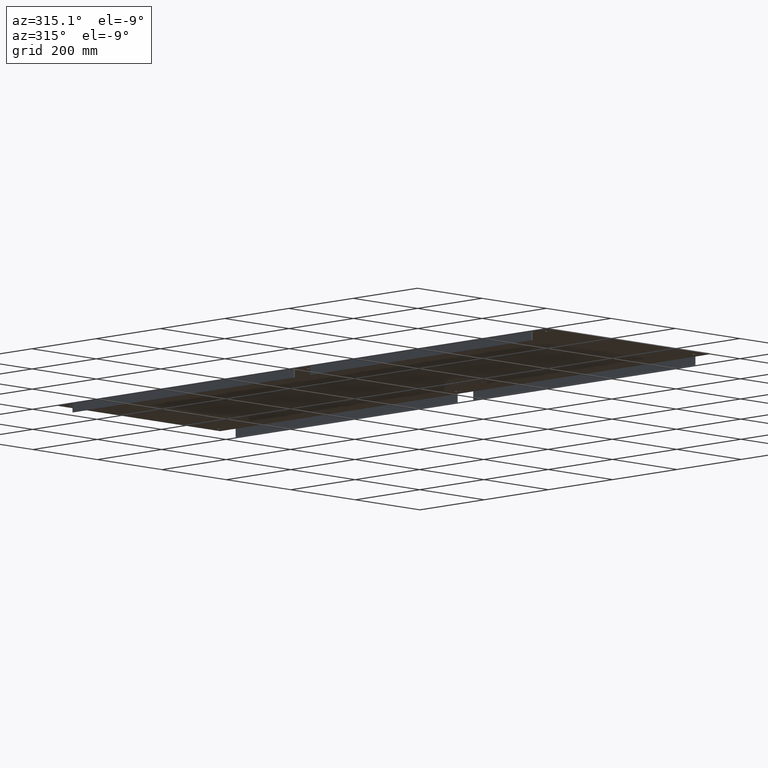
[diagram: clean part render]
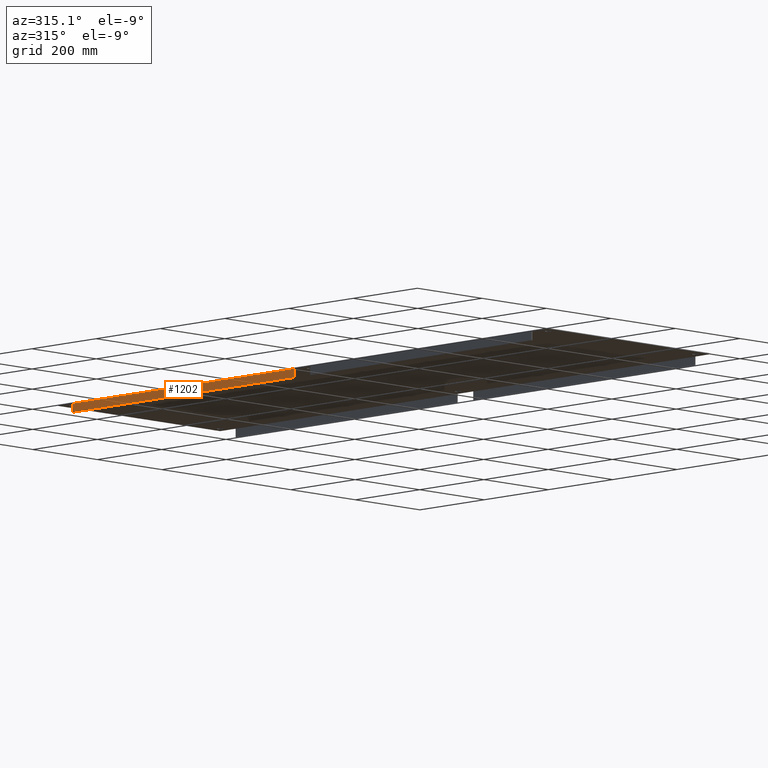
[diagram: same view with one face highlighted and labeled with its STEP entity id]
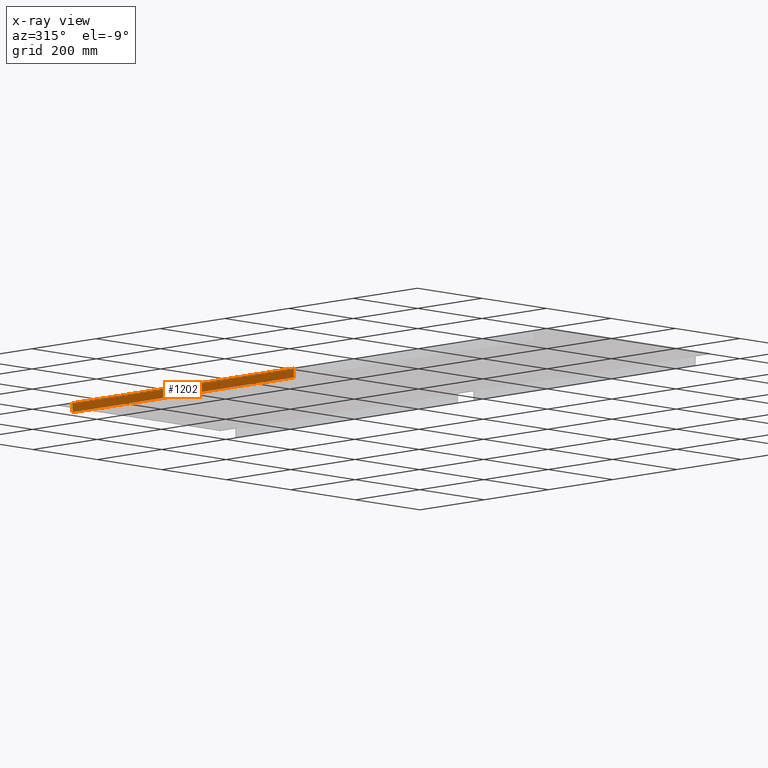
[diagram: x-ray of the same camera — body ghosted, the highlighted face saturated]
A machine part, auxiliary view. The second image highlights one B-rep face of the part: STEP entity #1202.
The next image is the same camera in x-ray: the body ghosted, the highlighted face saturated — about 0% of this face is hidden behind the body in this view.
In plain terms, the highlighted planar face has unit normal (-1, 0, 0).
Its self-contained STEP definition (entity closure, byte-faithful):
#266=CARTESIAN_POINT('',(-1.942647E-019,31.000000000000007,-0.015));
#267=VERTEX_POINT('',#266);
#275=CARTESIAN_POINT('',(0.0,31.000000000000011,-0.78125));
#276=VERTEX_POINT('',#275);
#277=CARTESIAN_POINT('',(-9.553272E-015,31.000000000000011,-0.78125));
#278=DIRECTION('',(0.0,0.0,1.0));
#279=VECTOR('',#278,0.76625);
#280=LINE('',#277,#279);
#281=EDGE_CURVE('',#276,#267,#280,.T.);
#522=CARTESIAN_POINT('',(-1.785536E-014,58.125000000000007,-0.78125));
#523=VERTEX_POINT('',#522);
#524=CARTESIAN_POINT('',(-9.550735E-015,31.000000000000011,-0.78125));
#525=DIRECTION('',(0.0,1.0,0.0));
#526=VECTOR('',#525,27.125000000000004);
#527=LINE('',#524,#526);
#528=EDGE_CURVE('',#276,#523,#527,.T.);
#1179=CARTESIAN_POINT('',(-5.791518E-016,1.875,0.09375));
#1180=DIRECTION('',(-1.0,0.0,0.0));
#1181=DIRECTION('',(0.0,0.0,1.0));
#1182=AXIS2_PLACEMENT_3D('',#1179,#1180,#1181);
#1183=PLANE('',#1182);
#1184=ORIENTED_EDGE('',*,*,#281,.T.);
#1185=CARTESIAN_POINT('',(-5.900792E-016,58.125000000000007,-0.015000000002401));
#1186=VERTEX_POINT('',#1185);
#1187=CARTESIAN_POINT('',(-2.331790E-012,58.125000000000007,-0.015000000002401));
#1188=DIRECTION('',(0.0,-1.0,0.0));
#1189=VECTOR('',#1188,27.125);
#1190=LINE('',#1187,#1189);
#1191=EDGE_CURVE('',#1186,#267,#1190,.T.);
#1192=ORIENTED_EDGE('',*,*,#1191,.F.);
#1193=CARTESIAN_POINT('',(-1.780751E-014,58.125000000000007,-0.015));
#1194=DIRECTION('',(0.0,0.0,-1.0));
#1195=VECTOR('',#1194,0.76625);
#1196=LINE('',#1193,#1195);
#1197=EDGE_CURVE('',#1186,#523,#1196,.T.);
#1198=ORIENTED_EDGE('',*,*,#1197,.T.);
#1199=ORIENTED_EDGE('',*,*,#528,.F.);
#1200=EDGE_LOOP('',(#1184,#1192,#1198,#1199));
#1201=FACE_OUTER_BOUND('',#1200,.T.);
#1202=ADVANCED_FACE('',(#1201),#1183,.T.);